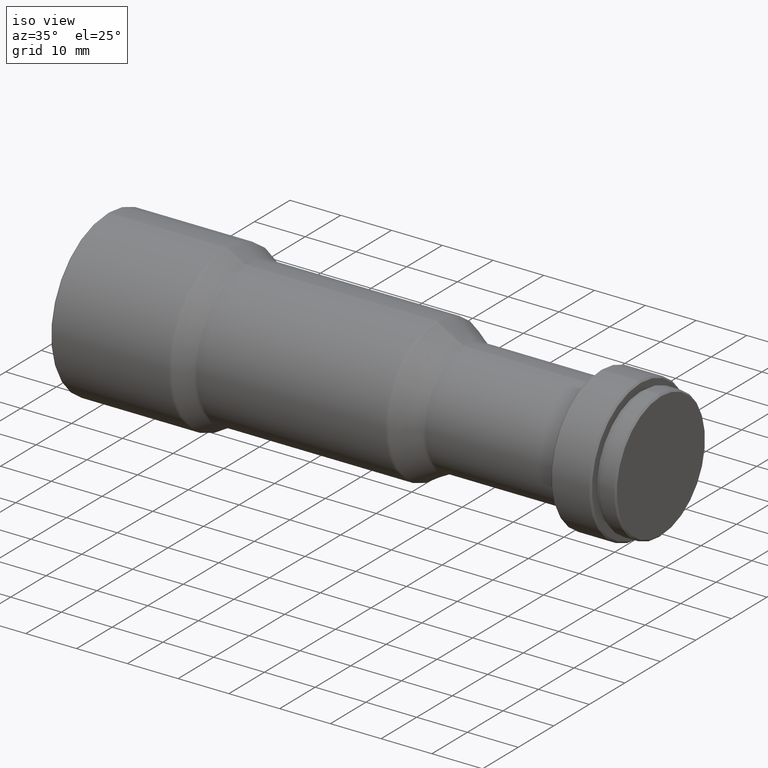
[diagram: clean part render]
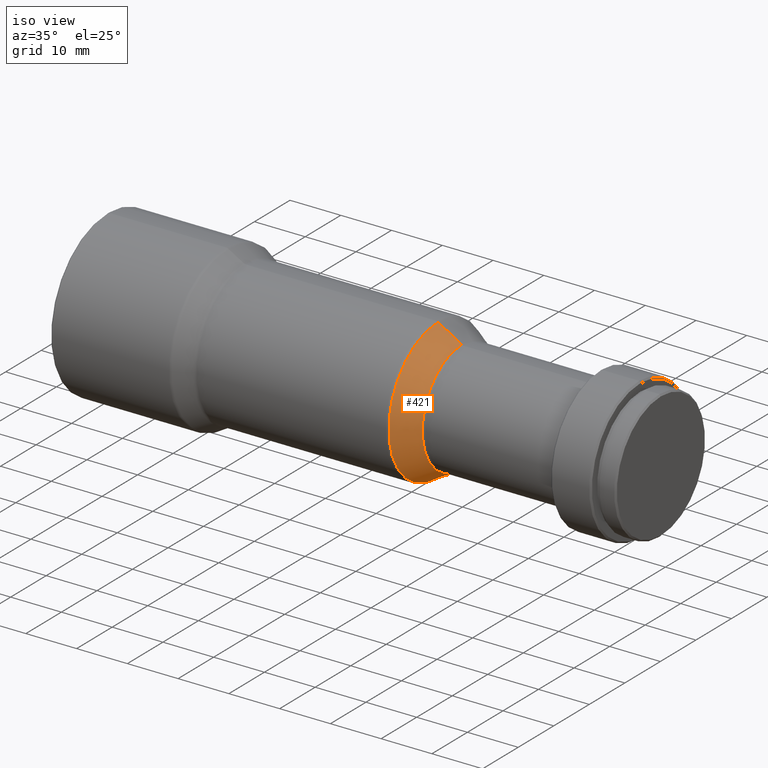
[diagram: same view with one face highlighted and labeled with its STEP entity id]
A machine part, iso view. The second image highlights one B-rep face of the part: STEP entity #421.
In plain terms, the highlighted conical surface has half-angle 30.169 deg.
Its self-contained STEP definition (entity closure, byte-faithful):
#3 = AXIS2_PLACEMENT_3D ( 'NONE', #341, #662, #412 ) ;
#26 = LINE ( 'NONE', #89, #49 ) ;
#34 = CARTESIAN_POINT ( 'NONE',  ( 69.89744790704824600, 0.0000000000000000000, 11.13545307017500400 ) ) ;
#47 = ORIENTED_EDGE ( 'NONE', *, *, #830, .F. ) ;
#49 = VECTOR ( 'NONE', #409, 1000.000000000000000 ) ;
#82 = EDGE_CURVE ( 'NONE', #641, #501, #433, .T. ) ;
#89 = CARTESIAN_POINT ( 'NONE',  ( 69.89744790704824600, 1.363699695944538600E-015, -11.13545307017500400 ) ) ;
#119 = CIRCLE ( 'NONE', #3, 11.13545307017500400 ) ;
#151 = AXIS2_PLACEMENT_3D ( 'NONE', #574, #425, #742 ) ;
#154 = VERTEX_POINT ( 'NONE', #760 ) ;
#189 = EDGE_LOOP ( 'NONE', ( #47, #364, #788, #512 ) ) ;
#274 = EDGE_CURVE ( 'NONE', #154, #790, #119, .T. ) ;
#308 = EDGE_CURVE ( 'NONE', #790, #501, #755, .T. ) ;
#341 = CARTESIAN_POINT ( 'NONE',  ( 69.89744790704824600, 0.0000000000000000000, 0.0000000000000000000 ) ) ;
#361 = DIRECTION ( 'NONE',  ( -1.000000000000000000, -0.0000000000000000000, -0.0000000000000000000 ) ) ;
#364 = ORIENTED_EDGE ( 'NONE', *, *, #274, .T. ) ;
#390 = VECTOR ( 'NONE', #522, 1000.000000000000000 ) ;
#405 = CARTESIAN_POINT ( 'NONE',  ( 69.89744790704824600, 0.0000000000000000000, 11.13545307017500400 ) ) ;
#409 = DIRECTION ( 'NONE',  ( -0.8645469298249873800, 6.154488120381685900E-017, -0.5025520929517539600 ) ) ;
#412 = DIRECTION ( 'NONE',  ( 0.0000000000000000000, 0.0000000000000000000, 1.000000000000000000 ) ) ;
#416 = FACE_OUTER_BOUND ( 'NONE', #189, .T. ) ;
#421 = ADVANCED_FACE ( 'NONE', ( #416 ), #814, .T. ) ;
#425 = DIRECTION ( 'NONE',  ( -1.000000000000000000, -0.0000000000000000000, -0.0000000000000000000 ) ) ;
#433 = CIRCLE ( 'NONE', #632, 13.86454692982498700 ) ;
#443 = DIRECTION ( 'NONE',  ( 0.0000000000000000000, 0.0000000000000000000, 1.000000000000000000 ) ) ;
#501 = VERTEX_POINT ( 'NONE', #753 ) ;
#512 = ORIENTED_EDGE ( 'NONE', *, *, #82, .F. ) ;
#522 = DIRECTION ( 'NONE',  ( -0.8645469298249873800, 0.0000000000000000000, 0.5025520929517539600 ) ) ;
#574 = CARTESIAN_POINT ( 'NONE',  ( 69.89744790704824600, 0.0000000000000000000, 0.0000000000000000000 ) ) ;
#632 = AXIS2_PLACEMENT_3D ( 'NONE', #844, #361, #443 ) ;
#641 = VERTEX_POINT ( 'NONE', #799 ) ;
#662 = DIRECTION ( 'NONE',  ( -1.000000000000000000, -0.0000000000000000000, -0.0000000000000000000 ) ) ;
#742 = DIRECTION ( 'NONE',  ( 0.0000000000000000000, 0.0000000000000000000, 1.000000000000000000 ) ) ;
#753 = CARTESIAN_POINT ( 'NONE',  ( 65.20255209295174800, 0.0000000000000000000, 13.86454692982498700 ) ) ;
#755 = LINE ( 'NONE', #34, #390 ) ;
#760 = CARTESIAN_POINT ( 'NONE',  ( 69.89744790704824600, 1.530808498934190900E-015, -11.13545307017500400 ) ) ;
#788 = ORIENTED_EDGE ( 'NONE', *, *, #308, .T. ) ;
#790 = VERTEX_POINT ( 'NONE', #405 ) ;
#799 = CARTESIAN_POINT ( 'NONE',  ( 65.20255209295174800, 1.706211410365068800E-015, -13.86454692982498700 ) ) ;
#814 = CONICAL_SURFACE ( 'NONE', #151, 11.13545307017500400, 0.5265481941832606000 ) ;
#830 = EDGE_CURVE ( 'NONE', #154, #641, #26, .T. ) ;
#844 = CARTESIAN_POINT ( 'NONE',  ( 65.20255209295174800, 0.0000000000000000000, 0.0000000000000000000 ) ) ;